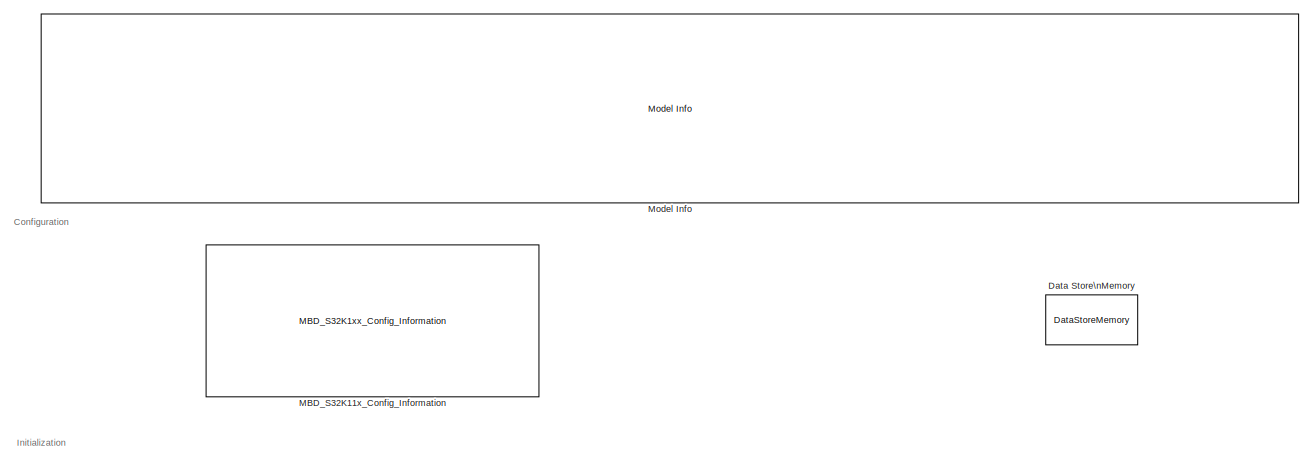
[diagram: root canvas - part 1/2, full width, top band]
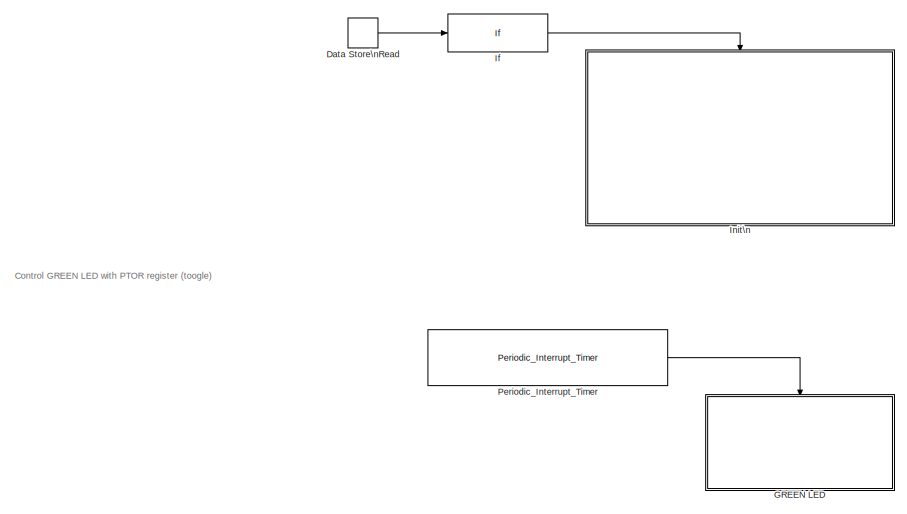
[diagram: root canvas - part 2/2, bottom left region]
MODEL rw_registers_s32k11x
KIND model
CONFIG InitFcn = mbd_s32k_consistency_checks(bdroot(gcs));
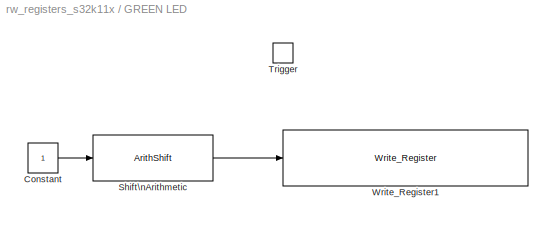
BLOCK [SubSystem]  GREEN LED
  Ports = [0, 0, 0, 1]
  Priority = 5
  RequestExecContextInheritance = off
  SID = 220
  TreatAsAtomicUnit = on
  Variant = off
BLOCK [Constant]  GREEN LED/Constant
  OutDataTypeStr = Inherit: Inherit via back propagation
  SID = 526
BLOCK [ArithShift]  GREEN LED/Shift\nArithmetic
  BitShiftDirection = Left
  BitShiftNumber = 15
  InputPortMap = u0
  Ports = [1, 1]
  SID = 527
BLOCK [TriggerPort]  GREEN LED/Trigger
  Ports = []
  SID = 221
  StatesWhenEnabling = held
  TriggerType = function-call
  VariantControl = Variant
BLOCK [Reference]  GREEN LED/Write_Register1  REF=mbd_s32k1xx_ec_toolbox/Utility Blocks/Write_Register
  Ports = [1]
  SID = 556
  SourceBlock = mbd_s32k1xx_ec_toolbox/Utility Blocks/Write_Register
  SourceType = register_s32k_write
  addr = 0x400FF0CC
  pcc_clock = PORTD_CLK
  periph = PTD
  reg = PTOR
  regsize = 32
BLOCK [DataStoreMemory] Data Store\nMemory
  ReadBeforeWriteMsg = warning
  SID = 185
  ShowAdditionalParam = off
  WriteAfterReadMsg = warning
  WriteAfterWriteMsg = warning
BLOCK [DataStoreRead] Data Store\nRead
  Ports = [0, 1]
  SID = 424
BLOCK [If] If
  IfExpression = u1 == 0
  Ports = [1, 1]
  Priority = 1
  SID = 435
  ShowElse = off
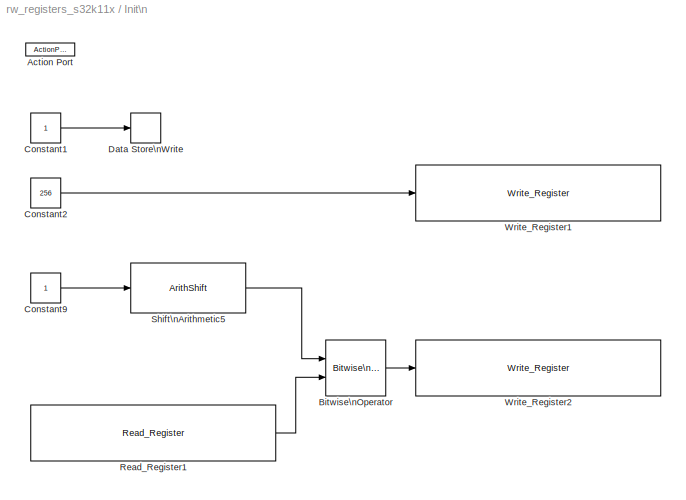
BLOCK [SubSystem] Init\n
  Ports = [0, 0, 0, 0, 0, 0, 0, 1]
  Priority = 1
  RTWSystemCode = Nonreusable function
  RequestExecContextInheritance = off
  SID = 425
  TreatAsAtomicUnit = on
  Variant = off
BLOCK [ActionPort] Init\n/Action Port
  SID = 426
BLOCK [Reference] Init\n/Bitwise\nOperator  REF=simulink/Logic and Bit\nOperations/Bitwise\nOperator
  BitMask = bin2dec('11011001')
  BitMaskRealWorld = Stored Integer
  NumInputPorts = 2
  Ports = [2, 1]
  SID = 427
  SourceBlock = simulink/Logic and Bit\nOperations/Bitwise\nOperator
  SourceProductBaseCode = SL
  SourceProductName = Simulink
  SourceType = Bitwise Operator
  UseBitMask = off
  logicop = OR
BLOCK [Constant] Init\n/Constant1
  OutDataTypeStr = Inherit: Inherit via back propagation
  SID = 428
BLOCK [Constant] Init\n/Constant2
  OutDataTypeStr = Inherit: Inherit via back propagation
  SID = 162
  Value = 256
BLOCK [Constant] Init\n/Constant9
  OutDataTypeStr = Inherit: Inherit via back propagation
  SID = 430
BLOCK [DataStoreWrite] Init\n/Data Store\nWrite
  Ports = [1]
  SID = 431
BLOCK [Reference] Init\n/Read_Register1  REF=mbd_s32k1xx_ec_toolbox/Utility Blocks/Read_Register
  Ports = [0, 1]
  Priority = 1
  SID = 560
  SourceBlock = mbd_s32k1xx_ec_toolbox/Utility Blocks/Read_Register
  SourceType = register_s32k_read
  addr = 0x400FF0D4
  pcc_clock = PORTD_CLK
  periph = PTD
  reg = PDDR
  regSize = 32
BLOCK [ArithShift] Init\n/Shift\nArithmetic5
  BitShiftDirection = Left
  BitShiftNumber = 15
  InputPortMap = u0
  Ports = [1, 1]
  SID = 433
BLOCK [Reference] Init\n/Write_Register1  REF=mbd_s32k1xx_ec_toolbox/Utility Blocks/Write_Register
  Ports = [1]
  Priority = 1
  SID = 558
  SourceBlock = mbd_s32k1xx_ec_toolbox/Utility Blocks/Write_Register
  SourceType = register_s32k_write
  addr = 0x4004C03C
  pcc_clock = PORTD_CLK
  periph = PORTD
  reg = PCR15
  regsize = 32
BLOCK [Reference] Init\n/Write_Register2  REF=mbd_s32k1xx_ec_toolbox/Utility Blocks/Write_Register
  Ports = [1]
  Priority = 1
  SID = 559
  SourceBlock = mbd_s32k1xx_ec_toolbox/Utility Blocks/Write_Register
  SourceType = register_s32k_write
  addr = 0x400FF0D4
  pcc_clock = PORTD_CLK
  periph = PTD
  reg = PDDR
  regsize = 32
BLOCK [Reference] MBD_S32K11x_Config_Information  REF=mbd_s32k1xx_ec_toolbox/MBD_S32K1xx_Config_Information
  ADC_PcrCheckEnDis = on
  AMMCLIB_PcrCheckEnDis = on
  CMP_PcrCheckEnDis = on
  CSEc_PcrCheckEnDis = on
  ConfigParams_PcrCheckEnDis = on
  FM_PcrCheckEnDis = on
  FTM_Dual_Edge_Inputs_PcrCheckEnDis = on
  FTM_Hall_Sensor_Inputs_PcrCheckEnDis = on
  FTM_Input_Edge_Inputs_PcrCheckEnDis = on
  FTM_PWM_PcrCheckEnDis = on
  FTM_Quadrature_Inputs_PcrCheckEnDis = on
  FlexCAN_PcrCheckEnDis = on
  FlexIO_PcrCheckEnDis = on
  GPIO_InputPcrCheckEnDis = on
  GPIO_OutputPcrCheckEnDis = on
  LIN_PcrCheckEnDis = on
  LPI2C_PcrCheckEnDis = on
  LPSPI_PcrCheckEnDis = on
  LPTMR_PcrCheckEnDis = on
  LPUART_PcrCheckEnDis = on
  ModelRef_PcrCheckEnDis = on
  PDB0_PcrCheckEnDis = on
  PIT_PcrCheckEnDis = on
  Ports = []
  Profile_PcrCheckEnDis = on
  RTC_PcrCheckEnDis = on
  SBC_PcrCheckEnDis = on
  SID = 561
  SourceBlock = mbd_s32k1xx_ec_toolbox/MBD_S32K1xx_Config_Information
  SourceType = MBDTBX_EC_S32K
  WDOG_PcrCheckEnDis = on
  config_params = []
  disp_str = Target : S32K144-64KB_SRAM\nPackage : 100-pin\nSystem clock : 80 MHz\nXTAL clock : External 8 MHz\nCompiler : IAR\nTarget Type : FLASH\nDownload Code after build : off\nStep Tick Interrupt Priority : 15
  ds_import_enable = on
  eDMA_PcrCheckEnDis = on
  gcc_target_assemble_opts = -mcpu=cortex-m0plus -mthumb -g
  gcc_target_compile_opts = -mcpu=cortex-m0plus -mthumb -O1 -g -gstrict-dwarf
  gcc_target_default_lcf = on
  gcc_target_link_opts = -mcpu=cortex-m0plus -mthumb
  gcc_target_user_lcf = S32K118_25_flash.ld
  ghs_target_assemble_opts = -mcpu=cortexm0plus -mthumb -fsoft --gnu_asm
  ghs_target_compile_opts = -mcpu=cortexm0plus -mthumb -fsoft -Ogeneral -Wundef -Wimplicit-int -Wshadow -Wtrigraphs --no_commons --gnu_asm -gnu99 -gdwarf-2 -G
  ghs_target_default_lcf = on
  ghs_target_link_opts = -mcpu=cortexm0plus -mthumb -fsoft
  ghs_target_user_lcf = S32K118_25_flash.ld
  iar_target_assemble_opts = --thumb
  iar_target_compile_opts = --thumb -Ol -e --debug --dlib_config normal
  iar_target_default_lcf = on
  iar_target_link_opts = --no_exceptions --vfe --inline
  iar_target_user_lcf = S32K118_25_flash.icf
  mbdt_ver = 0
  mcu_steptick_prio = 3
  mcu_steptick_timer = LPIT Channel 0
  mcu_system_clock_freq = 40
  mcu_target_name = S32K118
  mcu_target_package = 48-LQFP
  mcu_target_sram_size = 25KB
  mcu_xtal_freq = External 40
  pil_download_enable = off
  pil_download_rate = 57600
  pil_opensda_drive = Custom
  pil_opensda_drive_custom = D
  pil_uart_instance = 0
  pil_uart_rx = PTA2: [LPUART0_RX | Receive]
  pil_uart_tx = PTA3: [LPUART0_TX | Transmit]
  rbl_com_port = Custom
  rbl_com_port_custom = COM1
  rbl_download_enable = on
  rbl_download_interface = OpenSDA
  rbl_restart_request = off
  rbl_start_delay = 5000
  target_compiler = GCC
  target_memory = FLASH
BLOCK [Reference] Model Info  REF=simulink/Model-Wide\nUtilities/Model Info
  DisplayStringWithTags = Model Name: %<ModelName>\n\nDescription: %<Description>
  Frame = on
  HorizontalTextAlignment = Left
  LeftAlignmentValue = 0.02
  MaskDisplayString = Model Name: rw_registers_s32k11x\\n\\nDescription: This model demonstrates how to use the Read/Write Register blocks to:\\n - configure the GPIO hardware\\n - toogle GPIO register\\n\\nValidation: \\n - GREEN Led should toogle every 0.5 sec\\n\\nHW prerequisite:\\n- S32K118EVB
  Ports = []
  SID = 551
  SourceBlock = simulink/Model-Wide\nUtilities/Model Info
  SourceProductBaseCode = SL
  SourceProductName = Simulink
  SourceType = CMBlock
BLOCK [Reference] Periodic_Interrupt_Timer  REF=mbd_s32k1xx_ec_toolbox/Utility Blocks/Periodic_Interrupt_Timer
  Ports = [0, 1]
  SID = 580
  SourceBlock = mbd_s32k1xx_ec_toolbox/Utility Blocks/Periodic_Interrupt_Timer
  SourceType = timer_s32k_lpit
  channel = 2
  period = 500000
  prio = 15
  startCounter = on
ANNOTATION (root): Control GREEN LED with PTOR register (toogle)
ANNOTATION (root): Configuration
ANNOTATION (root): Initialization
LINE  GREEN LED/Constant:1 ->  GREEN LED/Shift\nArithmetic:1
LINE  GREEN LED/Shift\nArithmetic:1 ->  GREEN LED/Write_Register1:1
LINE Data Store\nRead:1 -> If:1
LINE If:1 -> Init\n:ifaction
LINE Init\n/Bitwise\nOperator:1 -> Init\n/Write_Register2:1
LINE Init\n/Constant1:1 -> Init\n/Data Store\nWrite:1
LINE Init\n/Constant2:1 -> Init\n/Write_Register1:1
LINE Init\n/Constant9:1 -> Init\n/Shift\nArithmetic5:1
LINE Init\n/Read_Register1:1 -> Init\n/Bitwise\nOperator:2
LINE Init\n/Shift\nArithmetic5:1 -> Init\n/Bitwise\nOperator:1
LINE Periodic_Interrupt_Timer:1 ->  GREEN LED:trigger
